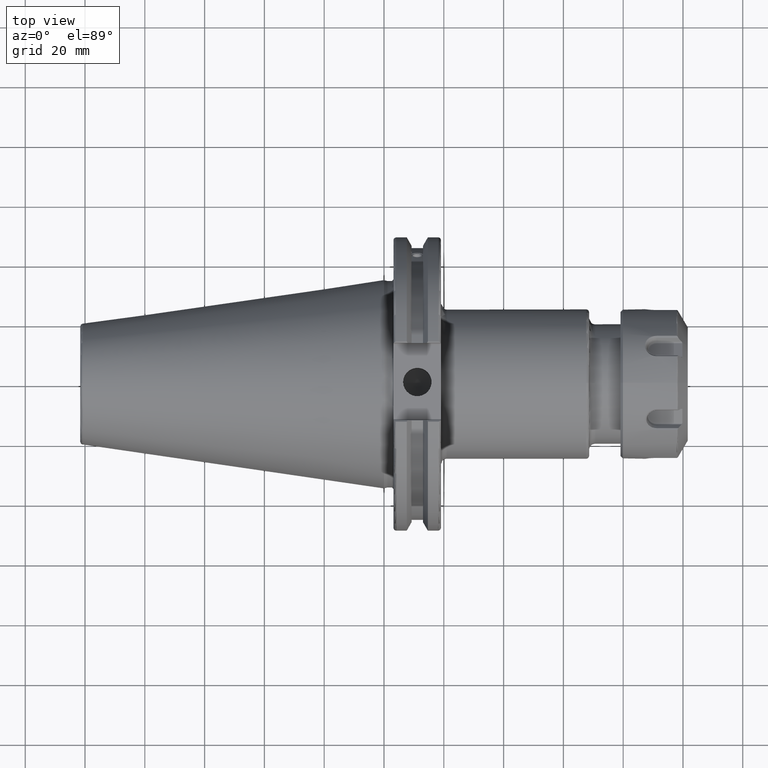
[diagram: clean part render]
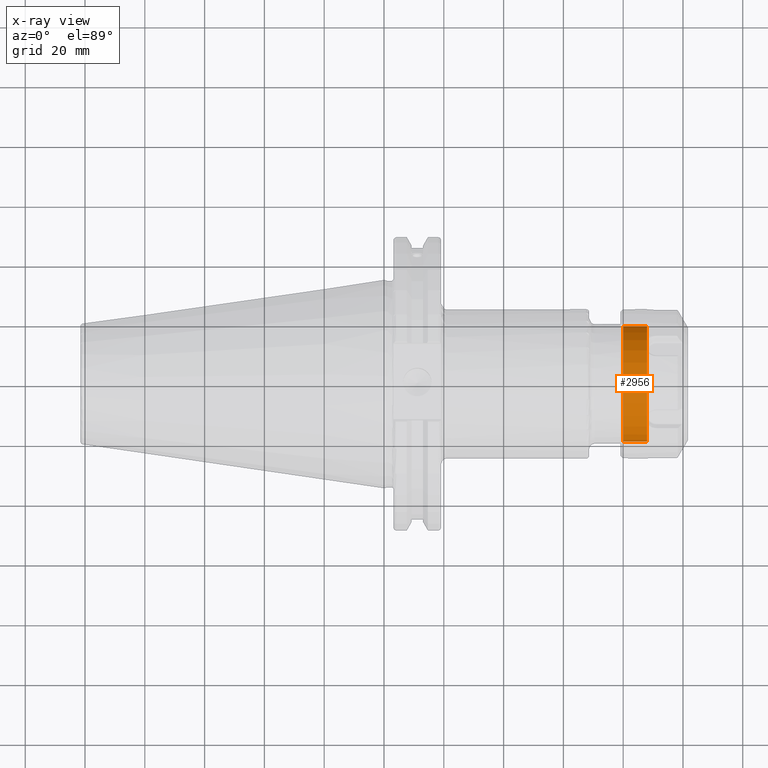
[diagram: x-ray — body ghosted, one internal face saturated and labeled with its STEP entity id]
A machine part, top view, then the same camera in x-ray: the body is ghosted and one INTERNAL B-rep face — a face not visible from any outside direction — is saturated and labeled: STEP entity #2956.
In plain terms, the highlighted cylindrical surface (bore or boss wall) has radius 19.3 mm, axis along (1, 0, 0).
Its self-contained STEP definition (entity closure, byte-faithful):
#289=CYLINDRICAL_SURFACE('',#3290,19.3);
#495=FACE_OUTER_BOUND('',#687,.T.);
#687=EDGE_LOOP('',(#2441,#2442,#2443,#2444,#2445));
#864=LINE('',#5169,#1039);
#1039=VECTOR('',#3874,19.3);
#1205=CIRCLE('',#3288,19.3);
#1206=CIRCLE('',#3289,19.3);
#1207=CIRCLE('',#3291,19.3);
#1415=VERTEX_POINT('',#5162);
#1416=VERTEX_POINT('',#5164);
#1417=VERTEX_POINT('',#5168);
#1773=EDGE_CURVE('',#1415,#1416,#1205,.T.);
#1774=EDGE_CURVE('',#1416,#1415,#1206,.T.);
#1775=EDGE_CURVE('',#1416,#1417,#864,.T.);
#1776=EDGE_CURVE('',#1417,#1417,#1207,.T.);
#2441=ORIENTED_EDGE('',*,*,#1773,.F.);
#2442=ORIENTED_EDGE('',*,*,#1774,.F.);
#2443=ORIENTED_EDGE('',*,*,#1775,.T.);
#2444=ORIENTED_EDGE('',*,*,#1776,.F.);
#2445=ORIENTED_EDGE('',*,*,#1775,.F.);
#2956=ADVANCED_FACE('',(#495),#289,.F.);
#3288=AXIS2_PLACEMENT_3D('',#5165,#3868,#3869);
#3289=AXIS2_PLACEMENT_3D('',#5166,#3870,#3871);
#3290=AXIS2_PLACEMENT_3D('',#5167,#3872,#3873);
#3291=AXIS2_PLACEMENT_3D('',#5170,#3875,#3876);
#3868=DIRECTION('center_axis',(1.,0.,0.));
#3869=DIRECTION('ref_axis',(0.,1.,0.));
#3870=DIRECTION('center_axis',(1.,0.,0.));
#3871=DIRECTION('ref_axis',(0.,1.,0.));
#3872=DIRECTION('center_axis',(1.,0.,0.));
#3873=DIRECTION('ref_axis',(0.,-1.,0.));
#3874=DIRECTION('',(1.,0.,0.));
#3875=DIRECTION('center_axis',(-1.,0.,0.));
#3876=DIRECTION('ref_axis',(0.,1.,0.));
#5162=CARTESIAN_POINT('',(-10.25,-19.2996618297511,0.114250852292867));
#5164=CARTESIAN_POINT('',(-10.25,19.3,2.36356832235439E-15));
#5165=CARTESIAN_POINT('Origin',(-10.25,0.,0.));
#5166=CARTESIAN_POINT('Origin',(-10.25,0.,0.));
#5167=CARTESIAN_POINT('Origin',(0.,0.,0.));
#5168=CARTESIAN_POINT('',(-2.39544826719,19.3,0.));
#5169=CARTESIAN_POINT('',(0.,19.3,2.36356832235439E-15));
#5170=CARTESIAN_POINT('Origin',(-2.39544826719,0.,0.));